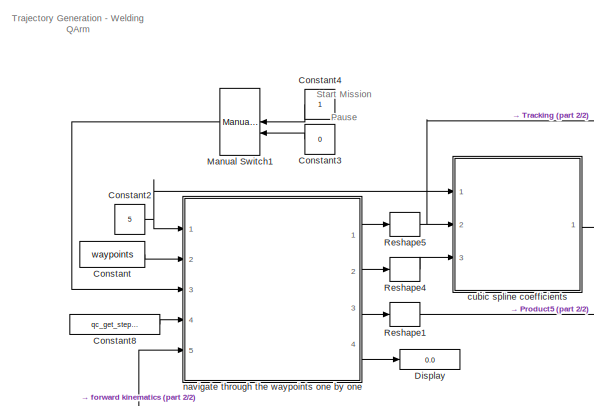
[diagram: root canvas - part 1/2, middle left region]
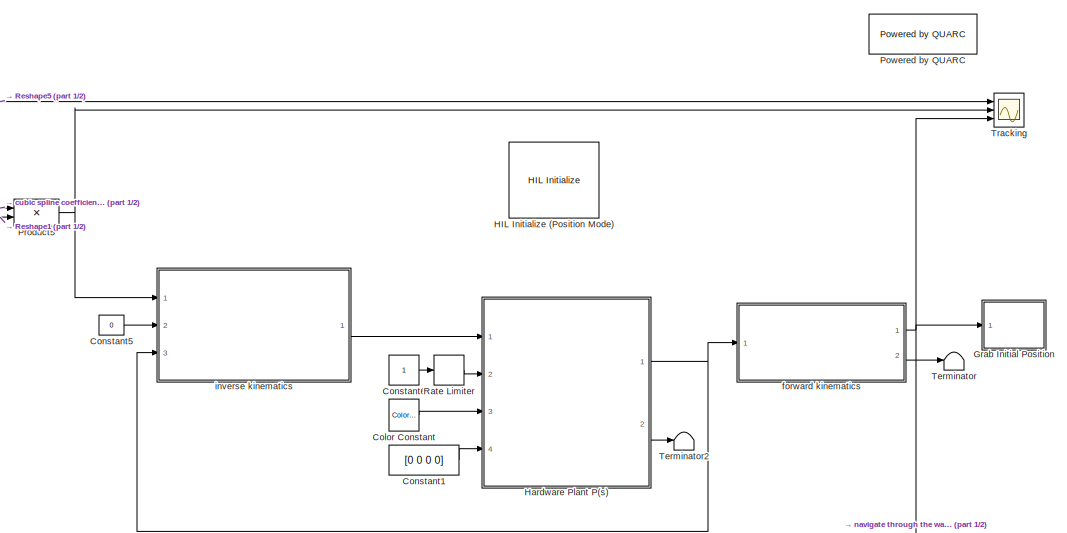
[diagram: root canvas - part 2/2, right side, full height]
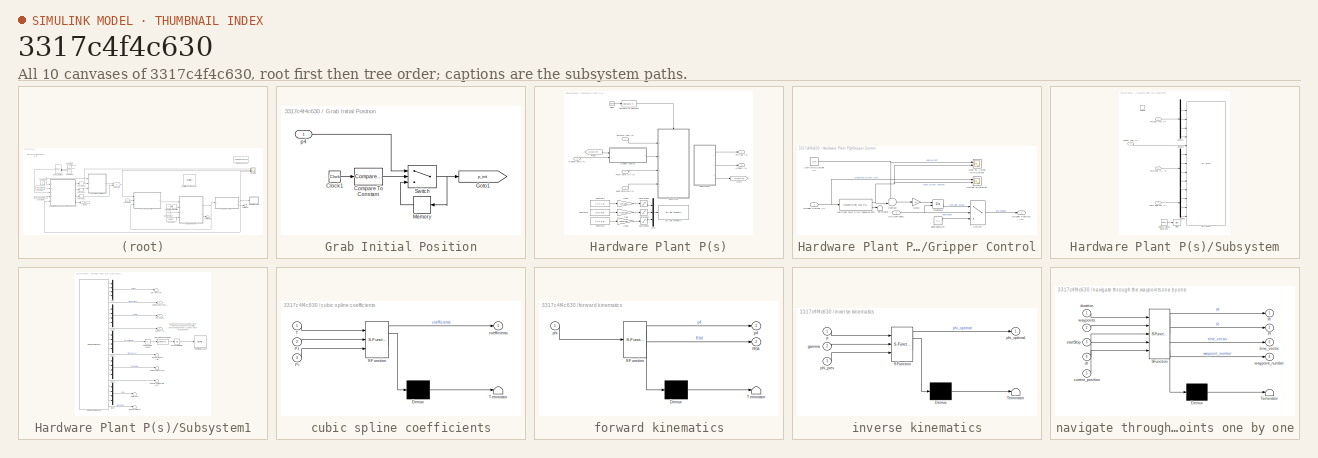
[diagram: thumbnail index - all 10 canvases of the model, root first then tree order]
MODEL slx_3317c4f4c630
KIND model
CONFIG AbsTol = auto
CONFIG EnableMultiTasking = on
CONFIG FixedStep = 1/500
CONFIG InitFcn = home = [0.45; 0; 0.49];\ndefault = [ 0.25; 0.25; 0.25];\nA = [ 0.25; 0.25; 0.10];\nB = [ 0.25; 0.50; 0.10];\nC = [-0.25; 0.50; 0.10];\nD = [-0.25; 0.25; 0.10];\n\nwaypoints = ...\n[default, A, B, C, D, A]' ;
CONFIG MaxStep = auto
CONFIG MinStep = auto
CONFIG RelTol = 1e-3
CONFIG SampleTimeConstraint = Unconstrained
CONFIG SolverName = ode4
CONFIG StartTime = 0.0
CONFIG StopTime = inf
BLOCK [Reference] Color Constant  REF=quarc_library/Sources/Signals/Color Constant
  Ports = [0, 1]
  SourceBlock = quarc_library/Sources/Signals/Color Constant
  SourceProductName = QUARC Targets
  SourceType = Color Constant
BLOCK [Constant] Constant
  Value = waypoints
  VectorParams1D = off
BLOCK [Constant] Constant1
  Value = [0 0 0 0]
BLOCK [Constant] Constant2
  Value = 5
BLOCK [Constant] Constant3
  NameLocation = top
  Value = 0
BLOCK [Constant] Constant4
  NameLocation = top
BLOCK [Constant] Constant5
  Value = 0
BLOCK [Constant] Constant6
BLOCK [Constant] Constant8
  Value = qc_get_step_size
BLOCK [Display] Display
  Decimation = 1
  Ports = [1]
BLOCK [SubSystem] Grab Initial Position
  Ports = [1]
BLOCK [Clock] Grab Initial Position/Clock1
BLOCK [Reference] Grab Initial Position/Compare To Constant  REF=simulink/Logic and Bit
Operations/Compare
To Constant
  Ports = [1, 1]
  SourceBlock = simulink/Logic and Bit\nOperations/Compare\nTo Constant
  SourceType = Compare To Constant
BLOCK [Goto] Grab Initial Position/Goto1
  GotoTag = p_init
  TagVisibility = global
BLOCK [Memory] Grab Initial Position/Memory
  InitialCondition = [0.45, 0, 0.49]
BLOCK [Switch] Grab Initial Position/Switch
  Criteria = u2 > Threshold
  InputSameDT = off
  SaturateOnIntegerOverflow = off
BLOCK [Inport] Grab Initial Position/p4
BLOCK [Reference] HIL Initialize (Position Mode)  REF=quarc_library/Data Acquisition/Generic/Configuration/HIL Initialize
  AttributesFormatString = %<object_name> (%<board_type>-%<board_number>)
  Ports = []
  Priority = 2
  SourceBlock = quarc_library/Data Acquisition/Generic/Configuration/HIL Initialize
  SourceProductName = QUARC Targets
  SourceType = HIL Initialize
  UserDataPersistent = on
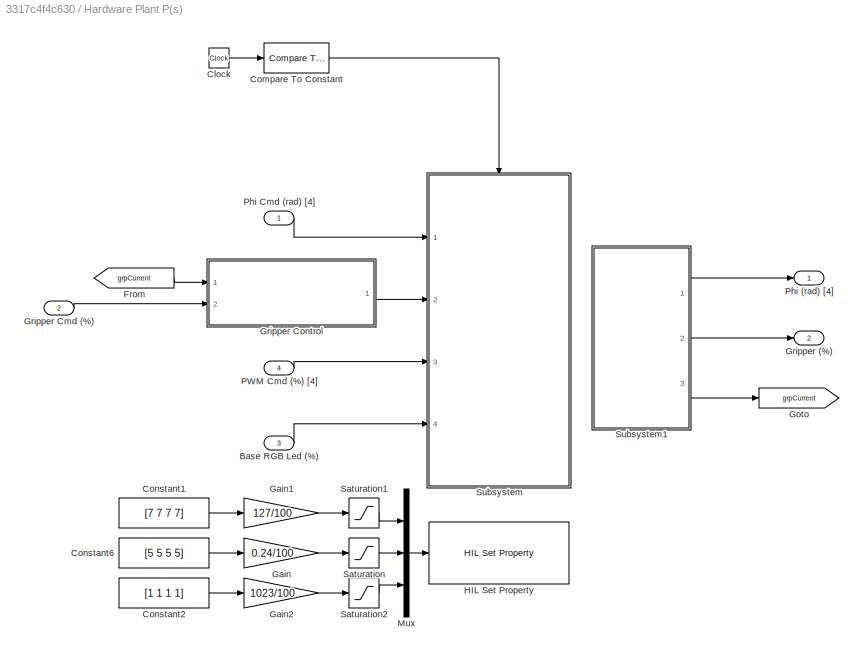
BLOCK [SubSystem] Hardware Plant P(s)
  NameLocation = top
  Permissions = NoReadOrWrite
  Ports = [4, 2]
BLOCK [Inport] Hardware Plant P(s)/Base RGB Led (%)
  Port = 3
BLOCK [Clock] Hardware Plant P(s)/Clock
BLOCK [Reference] Hardware Plant P(s)/Compare To Constant  REF=simulink/Logic and Bit
Operations/Compare
To Constant
  Ports = [1, 1]
  SourceBlock = simulink/Logic and Bit\nOperations/Compare\nTo Constant
  SourceType = Compare To Constant
BLOCK [Constant] Hardware Plant P(s)/Constant1
  Value = [7 7 7 7]
BLOCK [Constant] Hardware Plant P(s)/Constant2
  Value = [1 1 1 1]
BLOCK [Constant] Hardware Plant P(s)/Constant6
  Value = [5 5 5 5]
BLOCK [From] Hardware Plant P(s)/From
  GotoTag = grpCurrent
BLOCK [Gain] Hardware Plant P(s)/Gain
  Gain = 0.24/100
BLOCK [Gain] Hardware Plant P(s)/Gain1
  Gain = 127/100
BLOCK [Gain] Hardware Plant P(s)/Gain2
  Gain = 1023/100
BLOCK [Goto] Hardware Plant P(s)/Goto
  GotoTag = grpCurrent
BLOCK [Outport] Hardware Plant P(s)/Gripper (%)
  Port = 2
  VectorParamsAs1DForOutWhenUnconnected = off
BLOCK [Inport] Hardware Plant P(s)/Gripper Cmd (%)
  Port = 2
BLOCK [SubSystem] Hardware Plant P(s)/Gripper Control
  Ports = [2, 1]
BLOCK [Reference] Hardware Plant P(s)/Gripper Control/2nd Order 25Hz filter (based on FFT)  REF=quarc_library/Continuous/Second-Order
Low-Pass Filter
  Ports = [1, 2]
  SourceBlock = quarc_library/Continuous/Second-Order\nLow-Pass Filter
  SourceProductName = QUARC Targets
  SourceType = Second-Order Low-Pass Filter
BLOCK [Scope] Hardware Plant P(s)/Gripper Control/Current Filteration
  Floating = off
  NameLocation = top
  NumInputPorts = 2
  Ports = [2]
  ScopeSpecificationString = Simulink.scopes.TimeScopeBlockCfg('CurrentConfiguration', extmgr.ConfigurationSet(extmgr.Configuration('Core','General UI',true),extmgr.Configuration('Core','Source UI',true),extmgr.Configuration('Sources','WiredSimulink',true,'DataLoggingVariableName','ScopeData5'),extmgr.Configuration('Visuals','Time Domain',true,'SerializedDisplays',{struct('MinYLimReal','-0.01447','MaxYLimReal','0.62651','YLab...<+1429ch>
BLOCK [Gain] Hardware Plant P(s)/Gripper Control/Gain2
  Gain = 10
BLOCK [Scope] Hardware Plant P(s)/Gripper Control/Goal vs. Actual Grip Current
  Floating = off
  NameLocation = top
  NumInputPorts = 2
  Ports = [2]
  ScopeSpecificationString = Simulink.scopes.TimeScopeBlockCfg('CurrentConfiguration', extmgr.ConfigurationSet(extmgr.Configuration('Core','General UI',true),extmgr.Configuration('Core','Source UI',true),extmgr.Configuration('Sources','WiredSimulink',true,'DataLoggingVariableName','ScopeData4'),extmgr.Configuration('Visuals','Time Domain',true,'SerializedDisplays',{struct('MinYLimReal','0.00229','MaxYLimReal','0.27702','YLabe...<+1426ch>
BLOCK [Inport] Hardware Plant P(s)/Gripper Control/Gripper Current (A)
BLOCK [Outport] Hardware Plant P(s)/Gripper Control/Gripper Position (%)
  VectorParamsAs1DForOutWhenUnconnected = off
BLOCK [Integrator] Hardware Plant P(s)/Gripper Control/Integrator
  ExternalReset = either
  InitialCondition = 0.1
  LimitOutput = on
  LowerSaturationLimit = 0.1
  Ports = [2, 1]
  UpperSaturationLimit = 0.65
BLOCK [Inport] Hardware Plant P(s)/Gripper Control/ON//OFF (bool)
  Port = 2
BLOCK [Constant] Hardware Plant P(s)/Gripper Control/Soft-Grip Current (A)
  Value = 0.25
BLOCK [Sum] Hardware Plant P(s)/Gripper Control/Subtract
  Inputs = +-|
  Ports = [2, 1]
BLOCK [Switch] Hardware Plant P(s)/Gripper Control/Switch
  Criteria = u2 > Threshold
  InputSameDT = off
  SaturateOnIntegerOverflow = off
BLOCK [Terminator] Hardware Plant P(s)/Gripper Control/Terminator
BLOCK [Constant] Hardware Plant P(s)/Gripper Control/open position
  Value = 0.1
BLOCK [Reference] Hardware Plant P(s)/HIL Set Property  REF=quarc_library/Data Acquisition/Generic/Configuration/HIL Set Property
  AttributesFormatString = (%<object_name>)
  Ports = [1]
  SourceBlock = quarc_library/Data Acquisition/Generic/Configuration/HIL Set Property
  SourceProductName = QUARC Targets
  SourceType = HIL Set Property
  UserDataPersistent = on
BLOCK [Mux] Hardware Plant P(s)/Mux
  DisplayOption = bar
  Inputs = 3
  Ports = [3, 1]
BLOCK [Inport] Hardware Plant P(s)/PWM Cmd (%) [4]
  Port = 4
BLOCK [Outport] Hardware Plant P(s)/Phi (rad) [4]
  VectorParamsAs1DForOutWhenUnconnected = off
BLOCK [Inport] Hardware Plant P(s)/Phi Cmd (rad) [4]
BLOCK [Saturate] Hardware Plant P(s)/Saturation
  LowerLimit = 0
  UpperLimit = 0.24
BLOCK [Saturate] Hardware Plant P(s)/Saturation1
  LowerLimit = 0
  UpperLimit = 127
BLOCK [Saturate] Hardware Plant P(s)/Saturation2
  LowerLimit = 0
  UpperLimit = 1023
BLOCK [SubSystem] Hardware Plant P(s)/Subsystem
  Ports = [4, 0, 1]
BLOCK [Inport] Hardware Plant P(s)/Subsystem/Base RGB Led (%)
  Port = 4
BLOCK [Bias] Hardware Plant P(s)/Subsystem/Bias
  Bias = 0.5
  SaturateOnIntegerOverflow = off
BLOCK [Demux] Hardware Plant P(s)/Subsystem/Demux
  Outputs = 3
  Ports = [1, 3]
BLOCK [Demux] Hardware Plant P(s)/Subsystem/Demux1
  Ports = [1, 4]
BLOCK [Demux] Hardware Plant P(s)/Subsystem/Demux2
  Ports = [1, 4]
BLOCK [EnablePort] Hardware Plant P(s)/Subsystem/Enable
  Ports = []
BLOCK [Inport] Hardware Plant P(s)/Subsystem/Gripper Cmd (%)
  Port = 2
BLOCK [Reference] Hardware Plant P(s)/Subsystem/HIL Write  REF=quarc_library/Data Acquisition/Generic/Immediate I//O/HIL Write
  AttributesFormatString = (%<object_name>)
  Ports = [13]
  SourceBlock = quarc_library/Data Acquisition/Generic/Immediate I//O/HIL Write
  SourceProductName = QUARC Targets
  SourceType = HIL Write
  UserDataPersistent = on
BLOCK [Inport] Hardware Plant P(s)/Subsystem/PWM Cmd (%) [4]
  Port = 3
BLOCK [Inport] Hardware Plant P(s)/Subsystem/Phi Cmd (rad) [4]
BLOCK [Reference] Hardware Plant P(s)/Subsystem/Smooth Signal Generator  REF=quarc_library/Sources/Signals/Smooth Signal
Generator
  Ports = [0, 1]
  SourceBlock = quarc_library/Sources/Signals/Smooth Signal\nGenerator
  SourceProductName = QUARC Targets
  SourceType = Smooth Signal Generator
BLOCK [SubSystem] Hardware Plant P(s)/Subsystem1
  Ports = [0, 3]
BLOCK [Terminator] Hardware Plant P(s)/Subsystem1/Current (A) [4]
BLOCK [Outport] Hardware Plant P(s)/Subsystem1/Gripper (%)
  Port = 2
  VectorParamsAs1DForOutWhenUnconnected = off
BLOCK [Outport] Hardware Plant P(s)/Subsystem1/Gripper Current (A)
  Port = 3
  VectorParamsAs1DForOutWhenUnconnected = off
BLOCK [Terminator] Hardware Plant P(s)/Subsystem1/Gripper PWM (%)
BLOCK [Terminator] Hardware Plant P(s)/Subsystem1/Gripper Speed (%//s)
BLOCK [Terminator] Hardware Plant P(s)/Subsystem1/Gripper Temperature (C)
BLOCK [Reference] Hardware Plant P(s)/Subsystem1/HIL Read Timebase1  REF=quarc_library/Data Acquisition/Generic/Timebases/HIL Read
Timebase
  AttributesFormatString = (%<object_name>)
  Ports = [0, 25]
  SourceBlock = quarc_library/Data Acquisition/Generic/Timebases/HIL Read\nTimebase
  SourceProductName = QUARC Targets
  SourceType = HIL Read Timebase
  UserDataPersistent = on
BLOCK [Mux] Hardware Plant P(s)/Subsystem1/Mux
  DisplayOption = bar
  Ports = [4, 1]
BLOCK [Mux] Hardware Plant P(s)/Subsystem1/Mux1
  DisplayOption = bar
  Ports = [4, 1]
BLOCK [Mux] Hardware Plant P(s)/Subsystem1/Mux2
  DisplayOption = bar
  Ports = [4, 1]
BLOCK [Mux] Hardware Plant P(s)/Subsystem1/Mux3
  DisplayOption = bar
  Ports = [4, 1]
BLOCK [Mux] Hardware Plant P(s)/Subsystem1/Mux4
  DisplayOption = bar
  Ports = [4, 1]
BLOCK [Terminator] Hardware Plant P(s)/Subsystem1/PWM (%) [4]
BLOCK [Outport] Hardware Plant P(s)/Subsystem1/Phi (rad) [4]
  VectorParamsAs1DForOutWhenUnconnected = off
BLOCK [Reference] Hardware Plant P(s)/Subsystem1/Stop with Message  REF=quarc_library/Sinks/Error Handling/Stop with Message
  AttributesFormatString = "%<message>"
  Ports = [1]
  SourceBlock = quarc_library/Sinks/Error Handling/Stop with Message
  SourceProductName = QUARC Targets
  SourceType = Stop with Message
BLOCK [Terminator] Hardware Plant P(s)/Subsystem1/Temperature (C) [4]
BLOCK [Logic] Hardware Plant P(s)/Subsystem1/for any of the joints
  AllPortsSameDT = off
  IconShape = distinctive
  Inputs = 1
  Operator = OR
  OutDataTypeStr = boolean
  Ports = [1, 1]
BLOCK [Abs] Hardware Plant P(s)/Subsystem1/if the absolute speed
  SaturateOnIntegerOverflow = off
BLOCK [Reference] Hardware Plant P(s)/Subsystem1/is greater than 90 deg//s  REF=simulink/Logic and Bit
Operations/Compare
To Constant
  Ports = [1, 1]
  SourceBlock = simulink/Logic and Bit\nOperations/Compare\nTo Constant
  SourceType = Compare To Constant
BLOCK [ManualSwitch] Manual Switch1
  NameLocation = top
BLOCK [Reference] Powered by QUARC  REF=quarc_library/Logos/Powered by QUARC
  Ports = []
  SourceBlock = quarc_library/Logos/Powered by QUARC
  SourceProductName = QUARC Targets
  SourceType = Powered by QUARC
BLOCK [Product] Product5
  Multiplication = Matrix(*)
  Ports = [2, 1]
BLOCK [RateLimiter] Rate Limiter
  SampleTimeMode = inherited
BLOCK [Reshape] Reshape1
  OutputDimensionality = Column vector (2-D)
  Ports = [1, 1]
BLOCK [Reshape] Reshape4
  OutputDimensionality = Column vector (2-D)
  Ports = [1, 1]
BLOCK [Reshape] Reshape5
  OutputDimensionality = Column vector (2-D)
  Ports = [1, 1]
BLOCK [Terminator] Terminator
BLOCK [Terminator] Terminator2
BLOCK [Scope] Tracking
  Floating = off
  NumInputPorts = 3
  Ports = [3]
  ScopeSpecificationString = Simulink.scopes.TimeScopeBlockCfg('CurrentConfiguration', extmgr.ConfigurationSet(extmgr.Configuration('Core','General UI',true),extmgr.Configuration('Core','Source UI',true),extmgr.Configuration('Sources','WiredSimulink',true),extmgr.Configuration('Visuals','Time Domain',true,'SerializedDisplays',{struct('MinYLimReal','0.13597','MaxYLimReal','0.26687','YLabelReal','','MinYLimMag','0.13597','MaxYL...<+1348ch>
BLOCK [SubSystem] cubic spline coefficients
  ErrorFcn = Stateflow.Translate.translate
  NameLocation = top
  PermitHierarchicalResolution = ExplicitOnly
  Ports = [3, 1]
  SFBlockType = MATLAB Function
  TreatAsAtomicUnit = on
BLOCK [Demux] cubic spline coefficients/ Demux 
  Outputs = 1
  Ports = [1, 1]
BLOCK [S-Function] cubic spline coefficients/ SFunction 
  EnableBusSupport = off
  FunctionName = sf_sfun
  PortCounts = [3 2]
  Ports = [3, 2]
  SFcnIsStateOwnerBlock = off
  SFunctionDeploymentMode = off
  Tag = Stateflow S-Function 2
BLOCK [Terminator] cubic spline coefficients/ Terminator 
BLOCK [Inport] cubic spline coefficients/Pf
  Port = 2
BLOCK [Inport] cubic spline coefficients/Pi
  Port = 3
BLOCK [Inport] cubic spline coefficients/T
BLOCK [Outport] cubic spline coefficients/coefficients
  VectorParamsAs1DForOutWhenUnconnected = off
BLOCK [SubSystem] forward kinematics
  ErrorFcn = Stateflow.Translate.translate
  NameLocation = top
  PermitHierarchicalResolution = ExplicitOnly
  Ports = [1, 2]
  SFBlockType = MATLAB Function
  TreatAsAtomicUnit = on
BLOCK [Demux] forward kinematics/ Demux 
  Outputs = 1
  Ports = [1, 1]
BLOCK [S-Function] forward kinematics/ SFunction 
  EnableBusSupport = off
  FunctionName = sf_sfun
  PortCounts = [1 3]
  Ports = [1, 3]
  SFcnIsStateOwnerBlock = off
  SFunctionDeploymentMode = off
  Tag = Stateflow S-Function 3
BLOCK [Terminator] forward kinematics/ Terminator 
BLOCK [Outport] forward kinematics/R04
  Port = 2
  VectorParamsAs1DForOutWhenUnconnected = off
BLOCK [Outport] forward kinematics/p4
  VectorParamsAs1DForOutWhenUnconnected = off
BLOCK [Inport] forward kinematics/phi
BLOCK [SubSystem] inverse kinematics
  ErrorFcn = Stateflow.Translate.translate
  NameLocation = top
  PermitHierarchicalResolution = ExplicitOnly
  Ports = [3, 1]
  SFBlockType = MATLAB Function
  TreatAsAtomicUnit = on
BLOCK [Demux] inverse kinematics/ Demux 
  Outputs = 1
  Ports = [1, 1]
BLOCK [S-Function] inverse kinematics/ SFunction 
  EnableBusSupport = off
  FunctionName = sf_sfun
  PortCounts = [3 2]
  Ports = [3, 2]
  SFcnIsStateOwnerBlock = off
  SFunctionDeploymentMode = off
  Tag = Stateflow S-Function 4
BLOCK [Terminator] inverse kinematics/ Terminator 
BLOCK [Inport] inverse kinematics/gamma
  Port = 2
BLOCK [Inport] inverse kinematics/p
BLOCK [Outport] inverse kinematics/phi_optimal
  VectorParamsAs1DForOutWhenUnconnected = off
BLOCK [Inport] inverse kinematics/phi_prev
  Port = 3
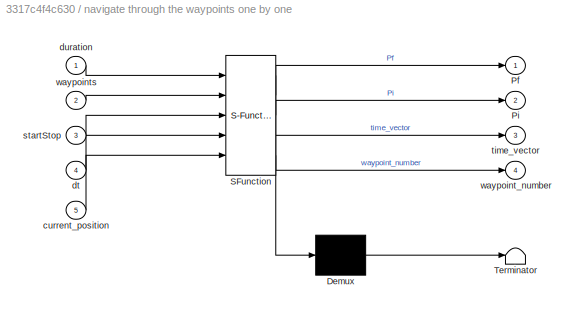
BLOCK [SubSystem] navigate through the waypoints one by one
  ErrorFcn = Stateflow.Translate.translate
  PermitHierarchicalResolution = ExplicitOnly
  Ports = [5, 4]
  SFBlockType = MATLAB Function
  TreatAsAtomicUnit = on
BLOCK [Demux] navigate through the waypoints one by one/ Demux 
  Outputs = 1
  Ports = [1, 1]
BLOCK [S-Function] navigate through the waypoints one by one/ SFunction 
  EnableBusSupport = off
  FunctionName = sf_sfun
  PortCounts = [5 5]
  Ports = [5, 5]
  SFcnIsStateOwnerBlock = off
  SFunctionDeploymentMode = off
  Tag = Stateflow S-Function 1
BLOCK [Terminator] navigate through the waypoints one by one/ Terminator 
BLOCK [Outport] navigate through the waypoints one by one/Pf
  VectorParamsAs1DForOutWhenUnconnected = off
BLOCK [Outport] navigate through the waypoints one by one/Pi
  Port = 2
  VectorParamsAs1DForOutWhenUnconnected = off
BLOCK [Inport] navigate through the waypoints one by one/current_position
  Port = 5
BLOCK [Inport] navigate through the waypoints one by one/dt
  Port = 4
BLOCK [Inport] navigate through the waypoints one by one/duration
BLOCK [Inport] navigate through the waypoints one by one/startStop
  Port = 3
BLOCK [Outport] navigate through the waypoints one by one/time_vector
  Port = 3
  VectorParamsAs1DForOutWhenUnconnected = off
BLOCK [Outport] navigate through the waypoints one by one/waypoint_number
  Port = 4
  VectorParamsAs1DForOutWhenUnconnected = off
BLOCK [Inport] navigate through the waypoints one by one/waypoints
  Port = 2
ANNOTATION (root): Trajectory Generation - Welding QArm
ANNOTATION (root): Pause
ANNOTATION (root): Start Mission
ANNOTATION Hardware Plant P(s)/Subsystem1: Maximum speed is 90 deg/s, but it should not be moving any faster than 45 deg/s. If it is, failure is detected. Power cycle the arm and restart the model.
LINE Color Constant:1 -> Hardware Plant P(s):3
LINE Constant1:1 -> Hardware Plant P(s):4
NET Constant2:1 -> cubic spline coefficients:1, navigate through the waypoints one by one:1
LINE Constant3:1 -> Manual Switch1:2
LINE Constant4:1 -> Manual Switch1:1
LINE Constant5:1 -> inverse kinematics:2
LINE Constant6:1 -> Rate Limiter:1
LINE Constant8:1 -> navigate through the waypoints one by one:4
LINE Constant:1 -> navigate through the waypoints one by one:2
LINE Grab Initial Position/Clock1:1 -> Grab Initial Position/Compare To Constant:1
LINE Grab Initial Position/Compare To Constant:1 -> Grab Initial Position/Switch:2
LINE Grab Initial Position/Memory:1 -> Grab Initial Position/Switch:3
NET Grab Initial Position/Switch:1 -> Grab Initial Position/Goto1:1, Grab Initial Position/Memory:1
LINE Grab Initial Position/p4:1 -> Grab Initial Position/Switch:1
LINE Hardware Plant P(s)/Base RGB Led (%):1 -> Hardware Plant P(s)/Subsystem:4
LINE Hardware Plant P(s)/Clock:1 -> Hardware Plant P(s)/Compare To Constant:1
LINE Hardware Plant P(s)/Compare To Constant:1 -> Hardware Plant P(s)/Subsystem:enable
LINE Hardware Plant P(s)/Constant1:1 -> Hardware Plant P(s)/Gain1:1
LINE Hardware Plant P(s)/Constant2:1 -> Hardware Plant P(s)/Gain2:1
LINE Hardware Plant P(s)/Constant6:1 -> Hardware Plant P(s)/Gain:1
LINE Hardware Plant P(s)/From:1 -> Hardware Plant P(s)/Gripper Control:1
LINE Hardware Plant P(s)/Gain1:1 -> Hardware Plant P(s)/Saturation1:1
LINE Hardware Plant P(s)/Gain2:1 -> Hardware Plant P(s)/Saturation2:1
LINE Hardware Plant P(s)/Gain:1 -> Hardware Plant P(s)/Saturation:1
LINE Hardware Plant P(s)/Gripper Cmd (%):1 -> Hardware Plant P(s)/Gripper Control:2
NET Hardware Plant P(s)/Gripper Control/2nd Order 25Hz filter (based on FFT):1 -> Hardware Plant P(s)/Gripper Control/Current Filteration:2, Hardware Plant P(s)/Gripper Control/Goal vs. Actual Grip Current:2, Hardware Plant P(s)/Gripper Control/Subtract:2
LINE Hardware Plant P(s)/Gripper Control/2nd Order 25Hz filter (based on FFT):2 -> Hardware Plant P(s)/Gripper Control/Terminator:1
LINE Hardware Plant P(s)/Gripper Control/Gain2:1 -> Hardware Plant P(s)/Gripper Control/Integrator:1
NET Hardware Plant P(s)/Gripper Control/Gripper Current (A):1 -> Hardware Plant P(s)/Gripper Control/2nd Order 25Hz filter (based on FFT):1, Hardware Plant P(s)/Gripper Control/Current Filteration:1
LINE Hardware Plant P(s)/Gripper Control/Integrator:1 -> Hardware Plant P(s)/Gripper Control/Switch:1
NET Hardware Plant P(s)/Gripper Control/ON//OFF (bool):1 -> Hardware Plant P(s)/Gripper Control/Integrator:2, Hardware Plant P(s)/Gripper Control/Switch:2
NET Hardware Plant P(s)/Gripper Control/Soft-Grip Current (A):1 -> Hardware Plant P(s)/Gripper Control/Goal vs. Actual Grip Current:1, Hardware Plant P(s)/Gripper Control/Subtract:1
LINE Hardware Plant P(s)/Gripper Control/Subtract:1 -> Hardware Plant P(s)/Gripper Control/Gain2:1
LINE Hardware Plant P(s)/Gripper Control/Switch:1 -> Hardware Plant P(s)/Gripper Control/Gripper Position (%):1
LINE Hardware Plant P(s)/Gripper Control/open position:1 -> Hardware Plant P(s)/Gripper Control/Switch:3
LINE Hardware Plant P(s)/Gripper Control:1 -> Hardware Plant P(s)/Subsystem:2
LINE Hardware Plant P(s)/Mux:1 -> Hardware Plant P(s)/HIL Set Property:1
LINE Hardware Plant P(s)/PWM Cmd (%) [4]:1 -> Hardware Plant P(s)/Subsystem:3
LINE Hardware Plant P(s)/Phi Cmd (rad) [4]:1 -> Hardware Plant P(s)/Subsystem:1
LINE Hardware Plant P(s)/Saturation1:1 -> Hardware Plant P(s)/Mux:1
LINE Hardware Plant P(s)/Saturation2:1 -> Hardware Plant P(s)/Mux:3
LINE Hardware Plant P(s)/Saturation:1 -> Hardware Plant P(s)/Mux:2
LINE Hardware Plant P(s)/Subsystem/Base RGB Led (%):1 -> Hardware Plant P(s)/Subsystem/Demux:1
LINE Hardware Plant P(s)/Subsystem/Bias:1 -> Hardware Plant P(s)/Subsystem/HIL Write:13
LINE Hardware Plant P(s)/Subsystem/Demux1:1 -> Hardware Plant P(s)/Subsystem/HIL Write:1
LINE Hardware Plant P(s)/Subsystem/Demux1:2 -> Hardware Plant P(s)/Subsystem/HIL Write:2
LINE Hardware Plant P(s)/Subsystem/Demux1:3 -> Hardware Plant P(s)/Subsystem/HIL Write:3
LINE Hardware Plant P(s)/Subsystem/Demux1:4 -> Hardware Plant P(s)/Subsystem/HIL Write:4
LINE Hardware Plant P(s)/Subsystem/Demux2:1 -> Hardware Plant P(s)/Subsystem/HIL Write:6
LINE Hardware Plant P(s)/Subsystem/Demux2:2 -> Hardware Plant P(s)/Subsystem/HIL Write:7
LINE Hardware Plant P(s)/Subsystem/Demux2:3 -> Hardware Plant P(s)/Subsystem/HIL Write:8
LINE Hardware Plant P(s)/Subsystem/Demux2:4 -> Hardware Plant P(s)/Subsystem/HIL Write:9
LINE Hardware Plant P(s)/Subsystem/Demux:1 -> Hardware Plant P(s)/Subsystem/HIL Write:10
LINE Hardware Plant P(s)/Subsystem/Demux:2 -> Hardware Plant P(s)/Subsystem/HIL Write:11
LINE Hardware Plant P(s)/Subsystem/Demux:3 -> Hardware Plant P(s)/Subsystem/HIL Write:12
LINE Hardware Plant P(s)/Subsystem/Gripper Cmd (%):1 -> Hardware Plant P(s)/Subsystem/HIL Write:5
LINE Hardware Plant P(s)/Subsystem/PWM Cmd (%) [4]:1 -> Hardware Plant P(s)/Subsystem/Demux2:1
LINE Hardware Plant P(s)/Subsystem/Phi Cmd (rad) [4]:1 -> Hardware Plant P(s)/Subsystem/Demux1:1
LINE Hardware Plant P(s)/Subsystem/Smooth Signal Generator:1 -> Hardware Plant P(s)/Subsystem/Bias:1
LINE Hardware Plant P(s)/Subsystem1/HIL Read Timebase1:1 -> Hardware Plant P(s)/Subsystem1/Mux:1
LINE Hardware Plant P(s)/Subsystem1/HIL Read Timebase1:10 -> Hardware Plant P(s)/Subsystem1/Gripper (%):1
LINE Hardware Plant P(s)/Subsystem1/HIL Read Timebase1:11 -> Hardware Plant P(s)/Subsystem1/Mux1:1
LINE Hardware Plant P(s)/Subsystem1/HIL Read Timebase1:12 -> Hardware Plant P(s)/Subsystem1/Mux1:2
LINE Hardware Plant P(s)/Subsystem1/HIL Read Timebase1:13 -> Hardware Plant P(s)/Subsystem1/Mux1:3
LINE Hardware Plant P(s)/Subsystem1/HIL Read Timebase1:14 -> Hardware Plant P(s)/Subsystem1/Mux1:4
LINE Hardware Plant P(s)/Subsystem1/HIL Read Timebase1:15 -> Hardware Plant P(s)/Subsystem1/Gripper Speed (%//s):1
LINE Hardware Plant P(s)/Subsystem1/HIL Read Timebase1:16 -> Hardware Plant P(s)/Subsystem1/Mux3:1
LINE Hardware Plant P(s)/Subsystem1/HIL Read Timebase1:17 -> Hardware Plant P(s)/Subsystem1/Mux3:2
LINE Hardware Plant P(s)/Subsystem1/HIL Read Timebase1:18 -> Hardware Plant P(s)/Subsystem1/Mux3:3
LINE Hardware Plant P(s)/Subsystem1/HIL Read Timebase1:19 -> Hardware Plant P(s)/Subsystem1/Mux3:4
LINE Hardware Plant P(s)/Subsystem1/HIL Read Timebase1:2 -> Hardware Plant P(s)/Subsystem1/Mux:2
LINE Hardware Plant P(s)/Subsystem1/HIL Read Timebase1:20 -> Hardware Plant P(s)/Subsystem1/Gripper Temperature (C):1
LINE Hardware Plant P(s)/Subsystem1/HIL Read Timebase1:21 -> Hardware Plant P(s)/Subsystem1/Mux4:1
LINE Hardware Plant P(s)/Subsystem1/HIL Read Timebase1:22 -> Hardware Plant P(s)/Subsystem1/Mux4:2
LINE Hardware Plant P(s)/Subsystem1/HIL Read Timebase1:23 -> Hardware Plant P(s)/Subsystem1/Mux4:3
LINE Hardware Plant P(s)/Subsystem1/HIL Read Timebase1:24 -> Hardware Plant P(s)/Subsystem1/Mux4:4
LINE Hardware Plant P(s)/Subsystem1/HIL Read Timebase1:25 -> Hardware Plant P(s)/Subsystem1/Gripper PWM (%):1
LINE Hardware Plant P(s)/Subsystem1/HIL Read Timebase1:3 -> Hardware Plant P(s)/Subsystem1/Mux:3
LINE Hardware Plant P(s)/Subsystem1/HIL Read Timebase1:4 -> Hardware Plant P(s)/Subsystem1/Mux:4
LINE Hardware Plant P(s)/Subsystem1/HIL Read Timebase1:5 -> Hardware Plant P(s)/Subsystem1/Gripper Current (A):1
LINE Hardware Plant P(s)/Subsystem1/HIL Read Timebase1:6 -> Hardware Plant P(s)/Subsystem1/Mux2:1
LINE Hardware Plant P(s)/Subsystem1/HIL Read Timebase1:7 -> Hardware Plant P(s)/Subsystem1/Mux2:2
LINE Hardware Plant P(s)/Subsystem1/HIL Read Timebase1:8 -> Hardware Plant P(s)/Subsystem1/Mux2:3
LINE Hardware Plant P(s)/Subsystem1/HIL Read Timebase1:9 -> Hardware Plant P(s)/Subsystem1/Mux2:4
LINE Hardware Plant P(s)/Subsystem1/Mux1:1 -> Hardware Plant P(s)/Subsystem1/if the absolute speed:1
LINE Hardware Plant P(s)/Subsystem1/Mux2:1 -> Hardware Plant P(s)/Subsystem1/Phi (rad) [4]:1
LINE Hardware Plant P(s)/Subsystem1/Mux3:1 -> Hardware Plant P(s)/Subsystem1/Temperature (C) [4]:1
LINE Hardware Plant P(s)/Subsystem1/Mux4:1 -> Hardware Plant P(s)/Subsystem1/PWM (%) [4]:1
LINE Hardware Plant P(s)/Subsystem1/Mux:1 -> Hardware Plant P(s)/Subsystem1/Current (A) [4]:1
LINE Hardware Plant P(s)/Subsystem1/for any of the joints:1 -> Hardware Plant P(s)/Subsystem1/Stop with Message:1
LINE Hardware Plant P(s)/Subsystem1/if the absolute speed:1 -> Hardware Plant P(s)/Subsystem1/is greater than 90 deg//s:1
LINE Hardware Plant P(s)/Subsystem1/is greater than 90 deg//s:1 -> Hardware Plant P(s)/Subsystem1/for any of the joints:1
LINE Hardware Plant P(s)/Subsystem1:1 -> Hardware Plant P(s)/Phi (rad) [4]:1
LINE Hardware Plant P(s)/Subsystem1:2 -> Hardware Plant P(s)/Gripper (%):1
LINE Hardware Plant P(s)/Subsystem1:3 -> Hardware Plant P(s)/Goto:1
NET Hardware Plant P(s):1 -> forward kinematics:1, inverse kinematics:3
LINE Hardware Plant P(s):2 -> Terminator2:1
LINE Manual Switch1:1 -> navigate through the waypoints one by one:3
NET Product5:1 -> Tracking:2, inverse kinematics:1
LINE Rate Limiter:1 -> Hardware Plant P(s):2
LINE Reshape1:1 -> Product5:2
LINE Reshape4:1 -> cubic spline coefficients:3
NET Reshape5:1 -> Tracking:1, cubic spline coefficients:2
LINE cubic spline coefficients:1 -> Product5:1
NET forward kinematics:1 -> Grab Initial Position:1, Tracking:3, navigate through the waypoints one by one:5
LINE forward kinematics:2 -> Terminator:1
LINE inverse kinematics:1 -> Hardware Plant P(s):1
LINE navigate through the waypoints one by one:1 -> Reshape5:1
LINE navigate through the waypoints one by one:2 -> Reshape4:1
LINE navigate through the waypoints one by one:3 -> Reshape1:1
LINE navigate through the waypoints one by one:4 -> Display:1
note: NET lines group one-source signal fan-out (src -> all destinations, sorted); 1:1 wires keep LINE
CHART navigate through the waypoints one by one states=1 transitions=1
  STATE_LABEL 'eML_blk_kernel()'
  STATE_LABEL 'SCRIPT:\nfunction [Pf, Pi, time_vector, waypoint_number] = waypointNavigator(duration, waypoints, startStop, dt, current_position)\n\n%% Initialization of internal variables\n% Use persistent variables to track states across multiple iterations, and \n% define them on first call\npersistent initial final next t\n    if isempty(initial) || isempty(final)\n        initial = current_position;\n        final =...<+902ch>'
CHART cubic spline coefficients states=1 transitions=1
  STATE_LABEL 'eML_blk_kernel()'
  STATE_LABEL 'SCRIPT:\nfunction coefficients = cubicSpline(T, Pf, Pi)\n\n% Cubic spline coefficients for X, Y and Z (coloumns)\na0 = ;\na1 = ;\na2 = ;\na3 = ;\n\n% Output coefficients as a 3 x 4 matrix (1 row each for x, y and z)\ncoefficients = [a0, a1, a2, a3];'
CHART forward kinematics states=1 transitions=1
  STATE_LABEL 'eML_blk_kernel()'
  STATE_LABEL 'SCRIPT:\nfunction [p4, R04] = qarmForwardKinematics(phi)\n\n%% QUANSER_ARM_FPK\n% v 4.0 - 4th June 2020\n\n% REFERENCE: \n% Chapter 3. Forward Kinematics\n% Robot Dynamics and Control \n% Spong, Vidyasagar\n% 1989\n\n% INPUTS:\n% phi     : Alternate joint angles vector 4 x 1\n\n% OUTPUTS:\n% p4      : End-effector frame {4} position vector expressed in base frame {0}\n% R04     : rotation matrix from end-effector ...<+1865ch>'
CHART inverse kinematics states=1 transitions=1
  STATE_LABEL 'eML_blk_kernel()'
  STATE_LABEL 'SCRIPT:\nfunction phi_optimal   = qarmInverseKinematics(p, gamma, phi_prev)\n\n%% QUANSER_ARM_IPK\n% v 4.0 - 4th June 2020\n\n% REFERENCE: \n% Chapter 4. Inverse Kinematics\n% Robot Dynamics and Control \n% Spong, Vidyasagar\n% 1989\n\n% INPUTS:\n% p        : end-effector position vector expressed in base frame {0}\n% gamma    : wrist rotation angle gamma\n\n% OUTPUTS:\n% phi_optimal : Best solution depending on p...<+2364ch>'
CHART  states=0 transitions=0
CHART  states=0 transitions=0
CHART  states=0 transitions=0
CHART  states=0 transitions=0
